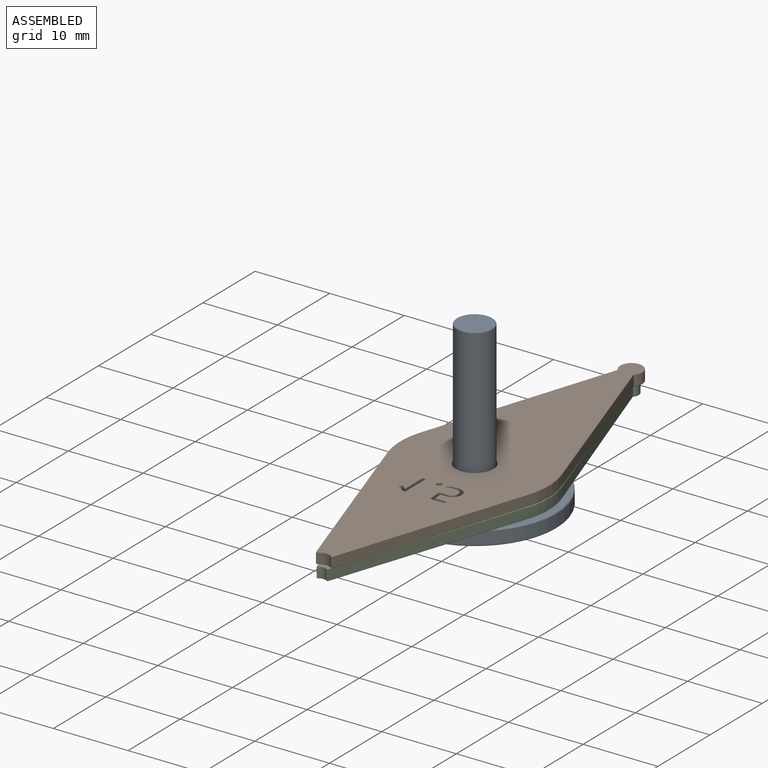
[diagram: assembled view]
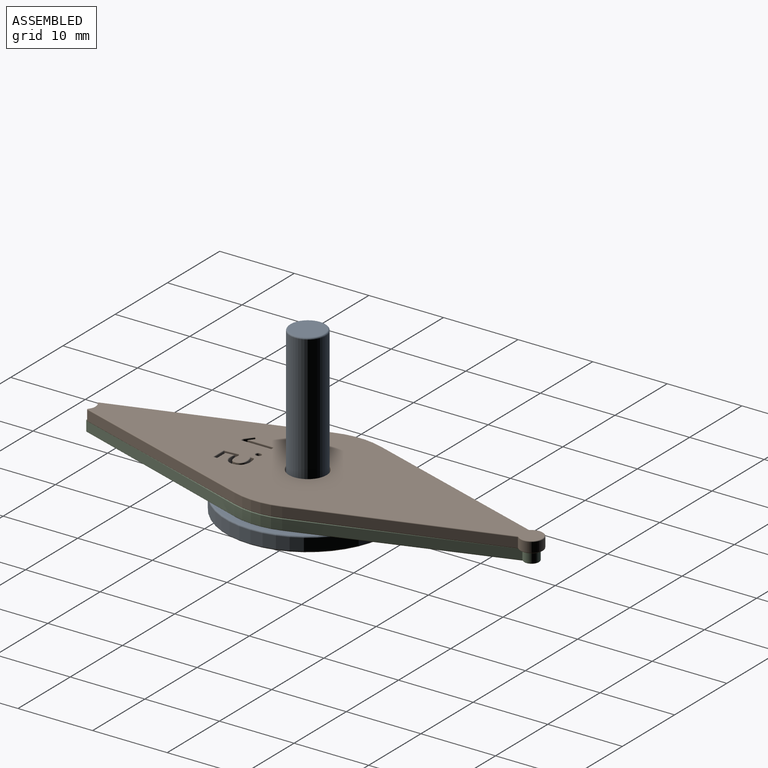
[diagram: assembled view, second angle]
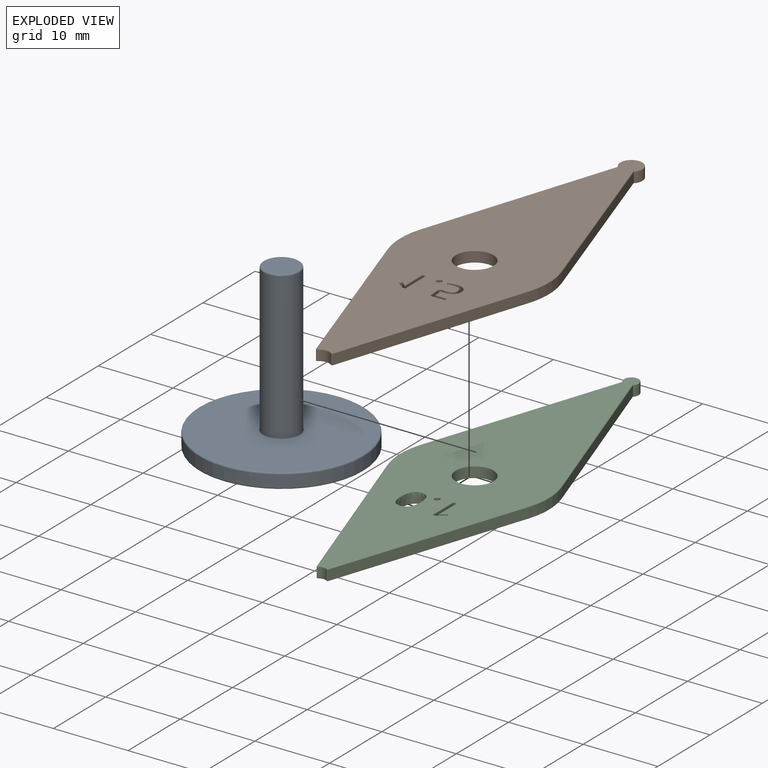
[diagram: exploded view]
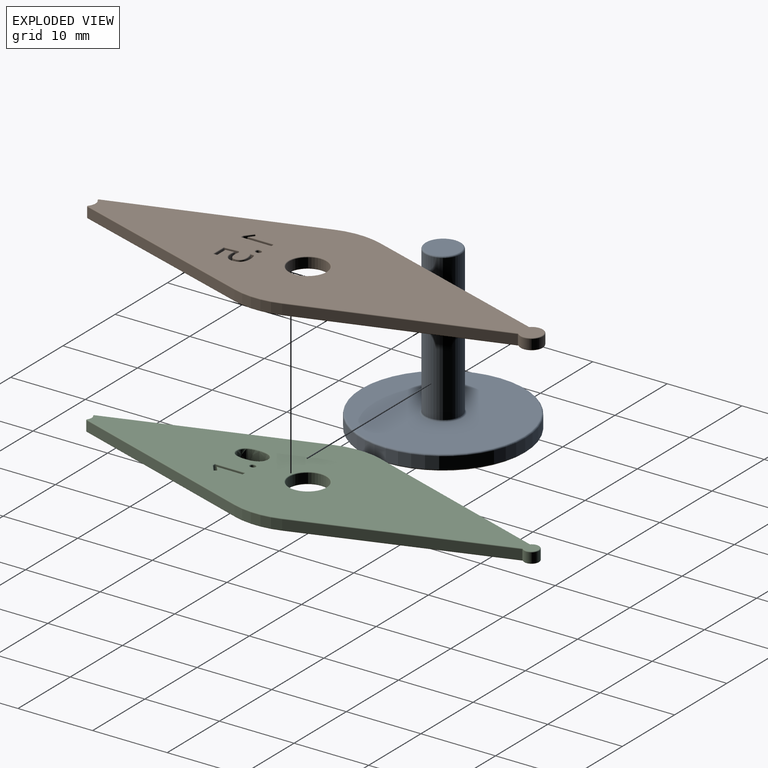
[diagram: exploded view, second angle]
ASSEMBLY  parts=3 mates=4
PART A: 9 faces, bbox 23.8x23.8x22 mm
  f0: cylinder r=11mm len=22mm, axis (0,0,-1), area 110.6mm2, adj f7,f8
  f1: plane 21.6x21.6mm, normal (0,0,1), area 345.2mm2, adj f5,f8
  f2: plane 21.6x21.6mm, normal (0,0,-1), area 366.4mm2, adj f7
  f3: cylinder r=2.4mm len=19.6mm, axis (0,0,-1), area 295.6mm2, adj f5,f6
  f4: plane 4.4x4.4mm, normal (0,0,1), area 15.2mm2, adj f6
  f5: torus R=2.6mm, axis (0,0,1), area 4.9mm2, adj f1,f3
  f6: torus R=2.2mm, axis (0,0,1), area 4.6mm2, adj f3,f4
  f7: torus R=10.8mm, axis (0,0,1), area 21.6mm2, adj f0,f2
  f8: torus R=10.8mm, axis (0,0,1), area 21.6mm2, adj f0,f1
PART B: 149 faces, bbox 21.6x60.5x1.5 mm
  f0: plane 3.97x1.3mm, normal (-1,0,0), area 5.2mm2, adj f1,f44,f80,f117
  f1: plane 1.3x0.44mm, normal (0,1,0), area 0.6mm2, adj f0,f2,f78,f115
  f2: plane 2.83x1.3mm, normal (1,0,0), area 3.7mm2, adj f1,f3,f75,f112
  f3: extruded ~1.3x0.67mm, area 0.9mm2, adj f2,f4,f76,f114
  f4: extruded ~1.3x0.13mm, area 0.2mm2, adj f3,f5,f77,f113
  f5: extruded ~1.3x0.65mm, area 1.1mm2, adj f4,f6,f79,f116
  f6: plane 1.3x0.31mm, normal (0.79,0.61,0), area 0.5mm2, adj f5,f7,f81,f118
  f7: plane 1.3x1.05mm, normal (0.61,-0.79,0), area 1.7mm2, adj f6,f44,f83,f120
  f8: extruded ~1.3x0.28mm, area 0.4mm2, adj f9,f40,f90,f127
  f9: extruded ~1.3x0.28mm, area 0.4mm2, adj f8,f10,f88,f125
  f10: extruded ~1.3x0.24mm, area 0.3mm2, adj f9,f11,f86,f123
  f11: extruded ~1.3x0.25mm, area 0.4mm2, adj f10,f12,f84,f121
  f12: extruded ~1.3x0.28mm, area 0.4mm2, adj f11,f13,f85,f122
  f13: extruded ~1.3x0.27mm, area 0.4mm2, adj f12,f14,f87,f124
  f14: extruded ~1.3x0.24mm, area 0.4mm2, adj f13,f40,f89,f126
  f15: extruded ~1.3x0.62mm, area 0.8mm2, adj f16,f41,f109,f146
  f16: extruded ~1.3x0.99mm, area 1.4mm2, adj f15,f17,f107,f144
  f17: extruded ~1.3x0.85mm, area 1.2mm2, adj f16,f18,f105,f142
  f18: extruded ~1.3x0.97mm, area 1.4mm2, adj f17,f19,f103,f140
  f19: extruded ~1.3x1.08mm, area 1.5mm2, adj f18,f20,f101,f138
  f20: extruded ~1.3x1.02mm, area 1.4mm2, adj f19,f21,f99,f136
  f21: plane 1.3x0.43mm, normal (1,0,0), area 0.6mm2, adj f20,f22,f97,f134
  f22: extruded ~1.3x0.47mm, area 0.7mm2, adj f21,f23,f95,f132
  f23: extruded ~1.3x0.56mm, area 0.7mm2, adj f22,f24,f93,f130
  f24: extruded ~1.3x0.74mm, area 1mm2, adj f23,f25,f92,f129
  f25: extruded ~1.3x0.65mm, area 0.9mm2, adj f24,f26,f94,f131
  f26: extruded ~1.3x1.02mm, area 2mm2, adj f25,f27,f96,f133
  f27: extruded ~1.3x0.69mm, area 0.9mm2, adj f26,f28,f98,f135
  f28: plane 1.3x0.23mm, normal (0.54,0.84,0), area 0.4mm2, adj f27,f29,f100,f137
  f29: plane 1.86x1.3mm, normal (1,-0.08,0), area 2.4mm2, adj f28,f30,f102,f139
  f30: plane 1.97x1.3mm, normal (0,-1,0), area 2.6mm2, adj f29,f31,f104,f141
  f31: plane 1.3x0.42mm, normal (-1,0,0), area 0.5mm2, adj f30,f32,f106,f143
  f32: plane 1.59x1.3mm, normal (0,1,0), area 2.1mm2, adj f31,f41,f108,f145
  f33: plane 25.61x8.37mm, normal (-0.95,0.31,0), area 35mm2, adj f34,f54,f59,f63
  f34: cylinder r=10mm len=6.37mm, axis (0,0,-1), area 8.4mm2, adj f33,f35,f64,f67
  f35: plane 25.7x8.4mm, normal (-0.95,-0.31,0), area 35.1mm2, adj f34,f68,f71,f74
  f36: cylinder r=1.5mm len=3mm, axis (0,0,-1), area 9mm2, adj f61,f69,f70,f74
  f37: plane 25.7x8.4mm, normal (0.95,-0.31,0), area 35.1mm2, adj f38,f60,f61,f62
  f38: cylinder r=10mm len=6.37mm, axis (0,0,-1), area 8.4mm2, adj f37,f39,f56,f57
  f39: plane 25.61x8.37mm, normal (0.95,0.31,0), area 35mm2, adj f38,f47,f51,f52
  f40: extruded ~1.3x0.23mm, area 0.3mm2, adj f8,f14,f91,f128
  f41: plane 1.3x1.19mm, normal (-1,0.08,0), area 1.6mm2, adj f15,f32,f110,f147
  f42: cylinder r=2.5mm len=5mm, axis (0,0,-1), area 20.4mm2, adj f111,f148
  f43: cylinder r=1.5mm len=1.9mm, axis (0,0,-1), area 2.7mm2, adj f47,f50,f53,f54
  f44: plane 1.3x0.38mm, normal (0,-1,0), area 0.5mm2, adj f0,f7,f82,f119
  f45: plane 60.16x19.8mm, normal (0,0,1), area 630.2mm2, adj f50,f51,f56,f59,f60,f64,f65,f68
  f46: plane 60.16x19.8mm, normal (0,0,-1), area 630.2mm2, adj f52,f53,f57,f62,f63,f66,f67,f70
  f47: cylinder r=0.1mm len=1.3mm, axis (0,0,-1), area 0.3mm2, adj f39,f43,f48,f49
  f48: sphere r=0.1mm, area 0mm2, adj f47,f50,f51
  f49: sphere r=0.1mm, area 0mm2, adj f47,f52,f53
  f50: torus R=1.6mm, axis (0,0,1), area 0.3mm2, adj f43,f45,f48,f55
  f51: cylinder r=0.1mm len=25.64mm, axis (0.31,-0.95,0), area 4.2mm2, adj f39,f45,f48,f56
  f52: cylinder r=0.1mm len=25.64mm, axis (-0.31,0.95,0), area 4.2mm2, adj f39,f46,f49,f57
  f53: torus R=1.6mm, axis (0,0,1), area 0.3mm2, adj f43,f46,f49,f58
  f54: cylinder r=0.1mm len=1.3mm, axis (0,0,-1), area 0.3mm2, adj f33,f43,f55,f58
  f55: sphere r=0.1mm, area 0mm2, adj f50,f54,f59
  f56: torus R=9.9mm, axis (0,0,1), area 1mm2, adj f38,f45,f51,f60
  f57: torus R=9.9mm, axis (0,0,1), area 1mm2, adj f38,f46,f52,f62
  f58: sphere r=0.1mm, area 0mm2, adj f53,f54,f63
  f59: cylinder r=0.1mm len=25.64mm, axis (0.31,0.95,0), area 4.2mm2, adj f33,f45,f55,f64
  f60: cylinder r=0.1mm len=25.73mm, axis (-0.31,-0.95,0), area 4.2mm2, adj f37,f45,f56,f65
  f61: cylinder r=0.1mm len=1.3mm, axis (0,0,-1), area 0.1mm2, adj f36,f37,f65,f66
  f62: cylinder r=0.1mm len=25.73mm, axis (0.31,0.95,0), area 4.2mm2, adj f37,f46,f57,f66
  f63: cylinder r=0.1mm len=25.64mm, axis (-0.31,-0.95,0), area 4.2mm2, adj f33,f46,f58,f67
  f64: torus R=9.9mm, axis (0,0,1), area 1mm2, adj f34,f45,f59,f68
  f65: torus R=0.2mm, axis (0,0,1), area 0mm2, adj f45,f60,f61,f69
  f66: torus R=0.2mm, axis (0,0,1), area 0mm2, adj f46,f61,f62,f70
  f67: torus R=9.9mm, axis (0,0,1), area 1mm2, adj f34,f46,f63,f71
  f68: cylinder r=0.1mm len=25.73mm, axis (-0.31,0.95,0), area 4.2mm2, adj f35,f45,f64,f72
  f69: torus R=1.4mm, axis (0,0,1), area 1.1mm2, adj f36,f45,f65,f72
  f70: torus R=1.4mm, axis (0,0,1), area 1.1mm2, adj f36,f46,f66,f73
  f71: cylinder r=0.1mm len=25.73mm, axis (0.31,-0.95,0), area 4.2mm2, adj f35,f46,f67,f73
  f72: torus R=0.2mm, axis (0,0,1), area 0mm2, adj f45,f68,f69,f74
  f73: torus R=0.2mm, axis (0,0,1), area 0mm2, adj f46,f70,f71,f74
  f74: cylinder r=0.1mm len=1.3mm, axis (0,0,-1), area 0.1mm2, adj f35,f36,f72,f73
  f75: cylinder r=0.1mm len=2.93mm, axis (0,1,0), area 0.5mm2, adj f2,f46,f76,f78
  f76: bspline ~0.98x0.13mm, area 0.1mm2, adj f3,f46,f75,f77,f79
  f77: bspline ~0.26x0.26mm, area 0mm2, adj f4,f76,f79
  f78: cylinder r=0.1mm len=0.64mm, axis (-1,0,0), area 0.1mm2, adj f1,f46,f75,f80
  f79: bspline ~1.6x1.33mm, area 0.1mm2, adj f5,f46,f76,f77,f81
  f80: cylinder r=0.1mm len=4.17mm, axis (0,-1,0), area 0.6mm2, adj f0,f46,f78,f82
  f81: cylinder r=0.1mm len=0.53mm, axis (-0.61,0.79,0), area 0.1mm2, adj f6,f46,f79,f83
  f82: cylinder r=0.1mm len=0.51mm, axis (1,0,0), area 0.1mm2, adj f44,f46,f80,f83
  f83: cylinder r=0.1mm len=1.22mm, axis (0.79,0.61,0), area 0.2mm2, adj f7,f46,f81,f82
  f84: bspline ~0.4x0.2mm, area 0mm2, adj f11,f46,f85,f86
  f85: bspline ~0.4x0.22mm, area 0.1mm2, adj f12,f46,f84,f87
  f86: bspline ~0.37x0.24mm, area 0mm2, adj f10,f46,f84,f88
  f87: bspline ~0.44x0.2mm, area 0.1mm2, adj f13,f46,f85,f89
  f88: bspline ~0.45x0.19mm, area 0.1mm2, adj f9,f46,f86,f90
  f89: bspline ~0.38x0.25mm, area 0mm2, adj f14,f46,f87,f91
  f90: bspline ~0.41x0.22mm, area 0.1mm2, adj f8,f46,f88,f91
  f91: bspline ~0.38x0.2mm, area 0mm2, adj f40,f46,f89,f90
  f92: bspline ~0.94x0.33mm, area 0.1mm2, adj f24,f46,f93,f94
  f93: bspline ~0.68x0.19mm, area 0.1mm2, adj f23,f46,f92,f95
  f94: bspline ~0.85x0.5mm, area 0.1mm2, adj f25,f46,f92,f96
  f95: bspline ~1.09x0.61mm, area 0.1mm2, adj f22,f46,f93,f97
  f96: bspline ~1.4x1.21mm, area 0.2mm2, adj f26,f46,f94,f98
  f97: cylinder r=0.1mm len=0.67mm, axis (0,1,0), area 0.1mm2, adj f21,f46,f95,f99
  f98: bspline ~0.93x0.2mm, area 0.1mm2, adj f27,f46,f96,f100
  f99: bspline ~1.56x0.43mm, area 0.2mm2, adj f20,f46,f97,f101
  f100: cylinder r=0.1mm len=0.37mm, axis (-0.84,0.54,0), area 0.1mm2, adj f28,f46,f98,f102
  f101: bspline ~1.56x0.61mm, area 0.2mm2, adj f19,f46,f99,f103
  f102: cylinder r=0.1mm len=2.02mm, axis (0.08,1,0), area 0.3mm2, adj f29,f46,f100,f104
  f103: bspline ~1.52x0.63mm, area 0.2mm2, adj f18,f46,f101,f105
  f104: cylinder r=0.1mm len=2.16mm, axis (1,0,0), area 0.3mm2, adj f30,f46,f102,f106
  f105: bspline ~1.43x0.69mm, area 0.2mm2, adj f17,f46,f103,f107
  f106: cylinder r=0.1mm len=0.62mm, axis (0,-1,0), area 0.1mm2, adj f31,f46,f104,f108
  f107: bspline ~1.31x0.45mm, area 0.2mm2, adj f16,f46,f105,f109
  f108: cylinder r=0.1mm len=1.69mm, axis (-1,0,0), area 0.2mm2, adj f32,f46,f106,f110
  f109: bspline ~0.9x0.19mm, area 0.1mm2, adj f15,f46,f107,f110
  f110: cylinder r=0.1mm len=1.2mm, axis (-0.08,-1,0), area 0.2mm2, adj f41,f46,f108,f109
  f111: torus R=2.6mm, axis (0,0,1), area 2.5mm2, adj f42,f46
  f112: cylinder r=0.1mm len=2.93mm, axis (0,-1,0), area 0.5mm2, adj f2,f45,f114,f115
  f113: bspline ~0.26x0.26mm, area 0mm2, adj f4,f114,f116
  f114: bspline ~0.98x0.13mm, area 0.1mm2, adj f3,f45,f112,f113,f116
  f115: cylinder r=0.1mm len=0.64mm, axis (1,0,0), area 0.1mm2, adj f1,f45,f112,f117
  f116: bspline ~1.6x1.33mm, area 0.1mm2, adj f5,f45,f113,f114,f118
  f117: cylinder r=0.1mm len=4.17mm, axis (0,1,0), area 0.6mm2, adj f0,f45,f115,f119
  f118: cylinder r=0.1mm len=0.53mm, axis (0.61,-0.79,0), area 0.1mm2, adj f6,f45,f116,f120
  f119: cylinder r=0.1mm len=0.51mm, axis (-1,0,0), area 0.1mm2, adj f44,f45,f117,f120
  f120: cylinder r=0.1mm len=1.22mm, axis (-0.79,-0.61,0), area 0.2mm2, adj f7,f45,f118,f119
  f121: bspline ~0.38x0.24mm, area 0mm2, adj f11,f45,f122,f123
  f122: bspline ~0.45x0.2mm, area 0.1mm2, adj f12,f45,f121,f124
  f123: bspline ~0.38x0.2mm, area 0mm2, adj f10,f45,f121,f125
  f124: bspline ~0.4x0.22mm, area 0.1mm2, adj f13,f45,f122,f126
  f125: bspline ~0.4x0.22mm, area 0.1mm2, adj f9,f45,f123,f127
  f126: bspline ~0.4x0.21mm, area 0mm2, adj f14,f45,f124,f128
  f127: bspline ~0.45x0.2mm, area 0.1mm2, adj f8,f45,f125,f128
  f128: bspline ~0.37x0.23mm, area 0mm2, adj f40,f45,f126,f127
  f129: bspline ~0.91x0.41mm, area 0.1mm2, adj f24,f45,f130,f131
  f130: bspline ~0.68x0.17mm, area 0.1mm2, adj f23,f45,f129,f132
  f131: bspline ~0.91x0.37mm, area 0.1mm2, adj f25,f45,f129,f133
  f132: bspline ~1.09x0.61mm, area 0.1mm2, adj f22,f45,f130,f134
  f133: bspline ~1.21x1.11mm, area 0.2mm2, adj f26,f45,f131,f135
  f134: cylinder r=0.1mm len=0.67mm, axis (0,-1,0), area 0.1mm2, adj f21,f45,f132,f136
  f135: bspline ~0.93x0.2mm, area 0.1mm2, adj f27,f45,f133,f137
  f136: bspline ~1.56x0.43mm, area 0.2mm2, adj f20,f45,f134,f138
  f137: cylinder r=0.1mm len=0.37mm, axis (0.84,-0.54,0), area 0.1mm2, adj f28,f45,f135,f139
  f138: bspline ~1.56x0.61mm, area 0.2mm2, adj f19,f45,f136,f140
  f139: cylinder r=0.1mm len=2.02mm, axis (-0.08,-1,0), area 0.3mm2, adj f29,f45,f137,f141
  f140: bspline ~1.25x0.63mm, area 0.2mm2, adj f18,f45,f138,f142
  f141: cylinder r=0.1mm len=2.16mm, axis (-1,0,0), area 0.3mm2, adj f30,f45,f139,f143
  f142: bspline ~1.43x0.69mm, area 0.2mm2, adj f17,f45,f140,f144
  f143: cylinder r=0.1mm len=0.62mm, axis (0,1,0), area 0.1mm2, adj f31,f45,f141,f145
  f144: bspline ~1.27x0.55mm, area 0.2mm2, adj f16,f45,f142,f146
  f145: cylinder r=0.1mm len=1.69mm, axis (1,0,0), area 0.2mm2, adj f32,f45,f143,f147
  f146: bspline ~0.9x0.19mm, area 0.1mm2, adj f15,f45,f144,f147
  f147: cylinder r=0.1mm len=1.2mm, axis (0.08,1,0), area 0.2mm2, adj f41,f45,f145,f146
  f148: torus R=2.6mm, axis (0,0,1), area 2.5mm2, adj f42,f45
PART C: 116 faces, bbox 21.6x60.3x1.5 mm
  f0: plane 25.97x8.72mm, normal (-0.95,0.32,0), area 35.6mm2, adj f1,f43,f44,f45
  f1: cylinder r=10mm len=6.37mm, axis (0,0,-1), area 8.4mm2, adj f0,f2,f39,f40
  f2: plane 26.05x8.75mm, normal (-0.95,-0.32,0), area 35.7mm2, adj f1,f36,f37,f111
  f3: cylinder r=1mm len=2mm, axis (0,0,-1), area 6mm2, adj f38,f41,f111,f114
  f4: plane 26.05x8.75mm, normal (0.95,-0.32,0), area 35.7mm2, adj f5,f42,f46,f114
  f5: cylinder r=10mm len=6.37mm, axis (0,0,-1), area 8.4mm2, adj f4,f6,f47,f50
  f6: plane 25.97x8.72mm, normal (0.95,0.32,0), area 35.6mm2, adj f5,f51,f54,f57
  f7: extruded ~1.52x1.3mm, area 2mm2, adj f8,f30,f65,f91
  f8: extruded ~1.54x1.3mm, area 2.1mm2, adj f7,f9,f63,f89
  f9: extruded ~1.3x0.99mm, area 1.5mm2, adj f8,f10,f61,f87
  f10: extruded ~1.3x0.97mm, area 1.5mm2, adj f9,f11,f59,f85
  f11: extruded ~1.52x1.3mm, area 2.1mm2, adj f10,f12,f60,f86
  f12: extruded ~1.54x1.3mm, area 2.1mm2, adj f11,f13,f62,f88
  f13: extruded ~1.3x0.98mm, area 1.5mm2, adj f12,f30,f64,f90
  f14: extruded ~1.3x0.28mm, area 0.4mm2, adj f15,f31,f73,f99
  f15: extruded ~1.3x0.28mm, area 0.4mm2, adj f14,f16,f71,f97
  f16: extruded ~1.3x0.24mm, area 0.3mm2, adj f15,f17,f69,f95
  f17: extruded ~1.3x0.25mm, area 0.4mm2, adj f16,f18,f67,f93
  f18: extruded ~1.3x0.28mm, area 0.4mm2, adj f17,f19,f68,f94
  f19: extruded ~1.3x0.27mm, area 0.4mm2, adj f18,f20,f70,f96
  f20: extruded ~1.3x0.24mm, area 0.4mm2, adj f19,f31,f72,f98
  f21: plane 3.97x1.3mm, normal (-1,0,0), area 5.2mm2, adj f22,f32,f82,f108
  f22: plane 1.3x0.44mm, normal (0,1,0), area 0.6mm2, adj f21,f23,f80,f106
  f23: plane 2.83x1.3mm, normal (1,0,0), area 3.7mm2, adj f22,f24,f78,f104
  f24: extruded ~1.3x0.67mm, area 0.9mm2, adj f23,f25,f76,f102
  f25: extruded ~1.3x0.13mm, area 0.2mm2, adj f24,f26,f75,f101
  f26: extruded ~1.3x0.65mm, area 1.1mm2, adj f25,f27,f77,f103
  f27: plane 1.3x0.31mm, normal (0.79,0.61,0), area 0.5mm2, adj f26,f28,f79,f105
  f28: plane 1.3x1.05mm, normal (0.61,-0.79,0), area 1.7mm2, adj f27,f32,f81,f107
  f29: cylinder r=2.5mm len=5mm, axis (0,0,-1), area 20.4mm2, adj f58,f84
  f30: extruded ~1.3x0.98mm, area 1.5mm2, adj f7,f13,f66,f92
  f31: extruded ~1.3x0.23mm, area 0.3mm2, adj f14,f20,f74,f100
  f32: plane 1.3x0.38mm, normal (0,-1,0), area 0.5mm2, adj f21,f28,f83,f109
  f33: cylinder r=1mm len=1.3mm, axis (0,0,-1), area 1.7mm2, adj f44,f52,f53,f57
  f34: plane 60.02x19.8mm, normal (0,0,1), area 611.6mm2, adj f36,f38,f39,f42,f43,f47,f51,f52
  f35: plane 60.02x19.8mm, normal (0,0,-1), area 611.6mm2, adj f37,f40,f41,f45,f46,f50,f53,f54
  f36: cylinder r=0.1mm len=26.2mm, axis (-0.32,0.95,0), area 4.3mm2, adj f2,f34,f39,f112
  f37: cylinder r=0.1mm len=26.2mm, axis (0.32,-0.95,0), area 4.3mm2, adj f2,f35,f40,f110
  f38: torus R=0.9mm, axis (0,0,1), area 0.7mm2, adj f3,f34,f112,f115
  f39: torus R=9.9mm, axis (0,0,1), area 1mm2, adj f1,f34,f36,f43
  f40: torus R=9.9mm, axis (0,0,1), area 1mm2, adj f1,f35,f37,f45
  f41: torus R=0.9mm, axis (0,0,1), area 0.7mm2, adj f3,f35,f110,f113
  f42: cylinder r=0.1mm len=26.2mm, axis (-0.32,-0.95,0), area 4.3mm2, adj f4,f34,f47,f115
  f43: cylinder r=0.1mm len=26mm, axis (0.32,0.95,0), area 4.3mm2, adj f0,f34,f39,f48
  f44: cylinder r=0.1mm len=1.3mm, axis (0,0,-1), area 0.2mm2, adj f0,f33,f48,f49
  f45: cylinder r=0.1mm len=26mm, axis (-0.32,-0.95,0), area 4.3mm2, adj f0,f35,f40,f49
  f46: cylinder r=0.1mm len=26.2mm, axis (0.32,0.95,0), area 4.3mm2, adj f4,f35,f50,f113
  f47: torus R=9.9mm, axis (0,0,1), area 1mm2, adj f5,f34,f42,f51
  f48: sphere r=0.1mm, area 0mm2, adj f43,f44,f52
  f49: sphere r=0.1mm, area 0mm2, adj f44,f45,f53
  f50: torus R=9.9mm, axis (0,0,1), area 1mm2, adj f5,f35,f46,f54
  f51: cylinder r=0.1mm len=26mm, axis (0.32,-0.95,0), area 4.3mm2, adj f6,f34,f47,f55
  f52: torus R=1.1mm, axis (0,0,1), area 0.2mm2, adj f33,f34,f48,f55
  f53: torus R=1.1mm, axis (0,0,1), area 0.2mm2, adj f33,f35,f49,f56
  f54: cylinder r=0.1mm len=26mm, axis (-0.32,0.95,0), area 4.3mm2, adj f6,f35,f50,f56
  f55: sphere r=0.1mm, area 0mm2, adj f51,f52,f57
  f56: sphere r=0.1mm, area 0mm2, adj f53,f54,f57
  f57: cylinder r=0.1mm len=1.3mm, axis (0,0,-1), area 0.2mm2, adj f6,f33,f55,f56
  f58: torus R=2.6mm, axis (0,0,1), area 2.5mm2, adj f29,f35
  f59: bspline ~1.53x0.88mm, area 0.2mm2, adj f10,f35,f60,f61
  f60: bspline ~2.22x0.62mm, area 0.3mm2, adj f11,f35,f59,f62
  f61: bspline ~1.55x0.87mm, area 0.2mm2, adj f9,f35,f59,f63
  f62: bspline ~2.25x0.62mm, area 0.3mm2, adj f12,f35,f60,f64
  f63: bspline ~2.24x0.62mm, area 0.3mm2, adj f8,f35,f61,f65
  f64: bspline ~1.31x0.86mm, area 0.2mm2, adj f13,f35,f62,f66
  f65: bspline ~2.2x0.62mm, area 0.3mm2, adj f7,f35,f63,f66
  f66: bspline ~1.54x0.88mm, area 0.2mm2, adj f30,f35,f64,f65
  f67: bspline ~0.4x0.2mm, area 0mm2, adj f17,f35,f68,f69
  f68: bspline ~0.4x0.22mm, area 0.1mm2, adj f18,f35,f67,f70
  f69: bspline ~0.37x0.24mm, area 0mm2, adj f16,f35,f67,f71
  f70: bspline ~0.44x0.2mm, area 0.1mm2, adj f19,f35,f68,f72
  f71: bspline ~0.45x0.19mm, area 0.1mm2, adj f15,f35,f69,f73
  f72: bspline ~0.38x0.25mm, area 0mm2, adj f20,f35,f70,f74
  f73: bspline ~0.41x0.22mm, area 0.1mm2, adj f14,f35,f71,f74
  f74: bspline ~0.38x0.2mm, area 0mm2, adj f31,f35,f72,f73
  f75: bspline ~0.26x0.26mm, area 0mm2, adj f25,f76,f77
  f76: bspline ~0.98x0.13mm, area 0.1mm2, adj f24,f35,f75,f77,f78
  f77: bspline ~1.6x1.33mm, area 0.1mm2, adj f26,f35,f75,f76,f79
  f78: cylinder r=0.1mm len=2.93mm, axis (0,1,0), area 0.5mm2, adj f23,f35,f76,f80
  f79: cylinder r=0.1mm len=0.53mm, axis (-0.61,0.79,0), area 0.1mm2, adj f27,f35,f77,f81
  f80: cylinder r=0.1mm len=0.64mm, axis (-1,0,0), area 0.1mm2, adj f22,f35,f78,f82
  f81: cylinder r=0.1mm len=1.22mm, axis (0.79,0.61,0), area 0.2mm2, adj f28,f35,f79,f83
  f82: cylinder r=0.1mm len=4.17mm, axis (0,-1,0), area 0.6mm2, adj f21,f35,f80,f83
  f83: cylinder r=0.1mm len=0.51mm, axis (1,0,0), area 0.1mm2, adj f32,f35,f81,f82
  f84: torus R=2.6mm, axis (0,0,1), area 2.5mm2, adj f29,f34
  f85: bspline ~1.53x0.88mm, area 0.2mm2, adj f10,f34,f86,f87
  f86: bspline ~2.22x0.62mm, area 0.3mm2, adj f11,f34,f85,f88
  f87: bspline ~1.55x0.87mm, area 0.2mm2, adj f9,f34,f85,f89
  f88: bspline ~2.25x0.62mm, area 0.3mm2, adj f12,f34,f86,f90
  f89: bspline ~2.24x0.62mm, area 0.3mm2, adj f8,f34,f87,f91
  f90: bspline ~1.54x0.86mm, area 0.2mm2, adj f13,f34,f88,f92
  f91: bspline ~2.2x0.62mm, area 0.3mm2, adj f7,f34,f89,f92
  f92: bspline ~1.54x0.88mm, area 0.2mm2, adj f30,f34,f90,f91
  f93: bspline ~0.38x0.24mm, area 0mm2, adj f17,f34,f94,f95
  f94: bspline ~0.45x0.2mm, area 0.1mm2, adj f18,f34,f93,f96
  f95: bspline ~0.38x0.2mm, area 0mm2, adj f16,f34,f93,f97
  f96: bspline ~0.4x0.22mm, area 0.1mm2, adj f19,f34,f94,f98
  f97: bspline ~0.4x0.22mm, area 0.1mm2, adj f15,f34,f95,f99
  f98: bspline ~0.4x0.21mm, area 0mm2, adj f20,f34,f96,f100
  f99: bspline ~0.45x0.2mm, area 0.1mm2, adj f14,f34,f97,f100
  f100: bspline ~0.37x0.23mm, area 0mm2, adj f31,f34,f98,f99
  f101: bspline ~0.26x0.26mm, area 0mm2, adj f25,f102,f103
  f102: bspline ~0.98x0.13mm, area 0.1mm2, adj f24,f34,f101,f103,f104
  f103: bspline ~1.6x1.33mm, area 0.1mm2, adj f26,f34,f101,f102,f105
  f104: cylinder r=0.1mm len=2.93mm, axis (0,-1,0), area 0.5mm2, adj f23,f34,f102,f106
  f105: cylinder r=0.1mm len=0.53mm, axis (0.61,-0.79,0), area 0.1mm2, adj f27,f34,f103,f107
  f106: cylinder r=0.1mm len=0.64mm, axis (1,0,0), area 0.1mm2, adj f22,f34,f104,f108
  f107: cylinder r=0.1mm len=1.22mm, axis (-0.79,-0.61,0), area 0.2mm2, adj f28,f34,f105,f109
  f108: cylinder r=0.1mm len=4.17mm, axis (0,1,0), area 0.6mm2, adj f21,f34,f106,f109
  f109: cylinder r=0.1mm len=0.51mm, axis (-1,0,0), area 0.1mm2, adj f32,f34,f107,f108
  f110: bspline ~0.15x0.11mm, area 0mm2, adj f37,f41,f111
  f111: cylinder r=0.1mm len=1.3mm, axis (0,0,-1), area 0.1mm2, adj f2,f3,f110,f112
  f112: bspline ~0.15x0.11mm, area 0mm2, adj f36,f38,f111
  f113: bspline ~0.15x0.11mm, area 0mm2, adj f41,f46,f114
  f114: cylinder r=0.1mm len=1.3mm, axis (0,0,-1), area 0.1mm2, adj f3,f4,f113,f115
  f115: bspline ~0.15x0.11mm, area 0mm2, adj f38,f42,f114
PLACE A t=(-21.72,37.96,-40.77)mm
PLACE B rot(axis=(1,0,0),180deg) t=(130.88,37.96,-35.77)mm
PLACE C rot(axis=(0,0,1),180deg) t=(105.88,37.96,-38.77)mm
MATE cylindrical A.f0 <-> C.f1  axis (0,0,1) through (105.88,37.96,-38.77)mm
MATE parallel C.f35 <-> A.f0  axis (0,0,-1) through (115.26,41.12,-38.77)mm
MATE parallel B.f45 <-> C.f34  axis (0,0,-1) through (105.87,38.4,-37.27)mm
MATE slider B.f42 <-> A.f3  axis (0,0,-1) through (105.88,37.96,-35.87)mm
